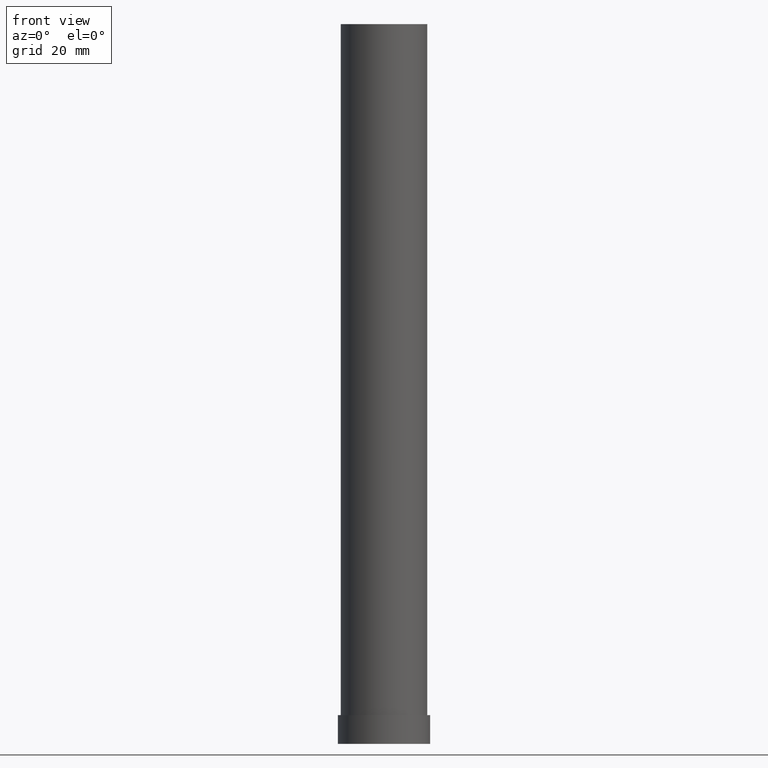
[diagram: clean part render]
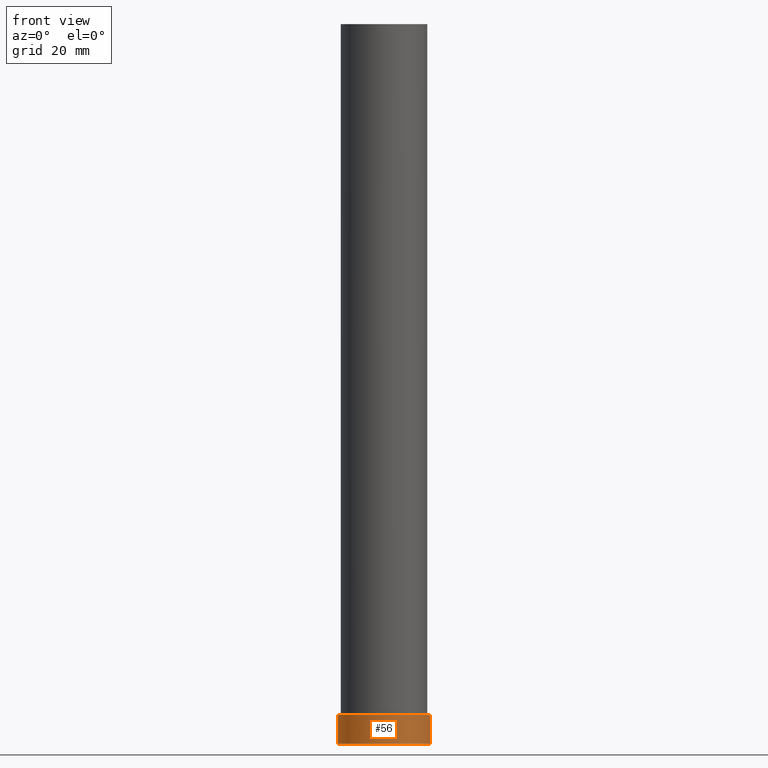
[diagram: same view with one face highlighted and labeled with its STEP entity id]
A machine part, front view. The second image highlights one B-rep face of the part: STEP entity #56.
In plain terms, the highlighted cylindrical surface (partial cylindrical patch) has radius 8 mm, axis along (-0, -0, -1).
Its self-contained STEP definition (entity closure, byte-faithful):
#2 = CYLINDRICAL_SURFACE ( 'NONE', #224, 8.000000000000000000 ) ;
#3 = CARTESIAN_POINT ( 'NONE',  ( -8.000000000000000000, 0.000000000000000000, 5.000000000000000000 ) ) ;
#6 = CIRCLE ( 'NONE', #92, 8.000000000000000000 ) ;
#21 = DIRECTION ( 'NONE',  ( -0.000000000000000000, -0.000000000000000000, -1.000000000000000000 ) ) ;
#38 = EDGE_CURVE ( 'NONE', #97, #145, #6, .T. ) ;
#39 = DIRECTION ( 'NONE',  ( -0.000000000000000000, -0.000000000000000000, -1.000000000000000000 ) ) ;
#41 = DIRECTION ( 'NONE',  ( 0.000000000000000000, 0.000000000000000000, 1.000000000000000000 ) ) ;
#42 = DIRECTION ( 'NONE',  ( -1.000000000000000000, 0.000000000000000000, 0.000000000000000000 ) ) ;
#46 = CARTESIAN_POINT ( 'NONE',  ( 8.000000000000000000, 9.797174393178825657E-16, 0.000000000000000000 ) ) ;
#47 = VECTOR ( 'NONE', #58, 1000.000000000000000 ) ;
#56 = ADVANCED_FACE ( 'NONE', ( #207 ), #2, .T. ) ;
#58 = DIRECTION ( 'NONE',  ( -0.000000000000000000, -0.000000000000000000, -1.000000000000000000 ) ) ;
#62 = ORIENTED_EDGE ( 'NONE', *, *, #182, .F. ) ;
#69 = EDGE_CURVE ( 'NONE', #76, #97, #169, .T. ) ;
#76 = VERTEX_POINT ( 'NONE', #3 ) ;
#88 = EDGE_CURVE ( 'NONE', #160, #145, #125, .T. ) ;
#92 = AXIS2_PLACEMENT_3D ( 'NONE', #189, #41, #168 ) ;
#97 = VERTEX_POINT ( 'NONE', #245 ) ;
#125 = LINE ( 'NONE', #140, #196 ) ;
#140 = CARTESIAN_POINT ( 'NONE',  ( 8.000000000000000000, 9.797174393178825657E-16, 5.000000000000000000 ) ) ;
#143 = CIRCLE ( 'NONE', #215, 8.000000000000000000 ) ;
#145 = VERTEX_POINT ( 'NONE', #46 ) ;
#147 = EDGE_LOOP ( 'NONE', ( #243, #62, #165, #240 ) ) ;
#160 = VERTEX_POINT ( 'NONE', #230 ) ;
#162 = CARTESIAN_POINT ( 'NONE',  ( 0.000000000000000000, 0.000000000000000000, 5.000000000000000000 ) ) ;
#165 = ORIENTED_EDGE ( 'NONE', *, *, #69, .T. ) ;
#168 = DIRECTION ( 'NONE',  ( 1.000000000000000000, 0.000000000000000000, 0.000000000000000000 ) ) ;
#169 = LINE ( 'NONE', #241, #47 ) ;
#182 = EDGE_CURVE ( 'NONE', #76, #160, #143, .T. ) ;
#189 = CARTESIAN_POINT ( 'NONE',  ( 0.000000000000000000, 0.000000000000000000, 0.000000000000000000 ) ) ;
#196 = VECTOR ( 'NONE', #39, 1000.000000000000000 ) ;
#207 = FACE_OUTER_BOUND ( 'NONE', #147, .T. ) ;
#210 = DIRECTION ( 'NONE',  ( 1.000000000000000000, 0.000000000000000000, 0.000000000000000000 ) ) ;
#215 = AXIS2_PLACEMENT_3D ( 'NONE', #233, #249, #210 ) ;
#224 = AXIS2_PLACEMENT_3D ( 'NONE', #162, #21, #42 ) ;
#230 = CARTESIAN_POINT ( 'NONE',  ( 8.000000000000000000, 9.797174393178825657E-16, 5.000000000000000000 ) ) ;
#233 = CARTESIAN_POINT ( 'NONE',  ( 0.000000000000000000, 0.000000000000000000, 5.000000000000000000 ) ) ;
#240 = ORIENTED_EDGE ( 'NONE', *, *, #38, .T. ) ;
#241 = CARTESIAN_POINT ( 'NONE',  ( -8.000000000000000000, 0.000000000000000000, 5.000000000000000000 ) ) ;
#243 = ORIENTED_EDGE ( 'NONE', *, *, #88, .F. ) ;
#245 = CARTESIAN_POINT ( 'NONE',  ( -8.000000000000000000, 0.000000000000000000, 0.000000000000000000 ) ) ;
#249 = DIRECTION ( 'NONE',  ( 0.000000000000000000, 0.000000000000000000, 1.000000000000000000 ) ) ;